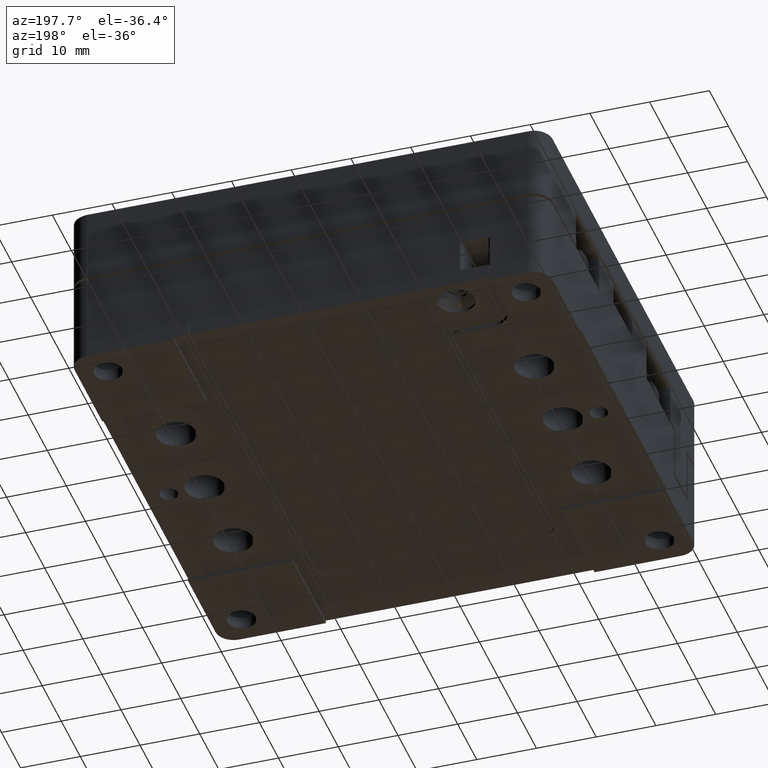
[diagram: clean part render]
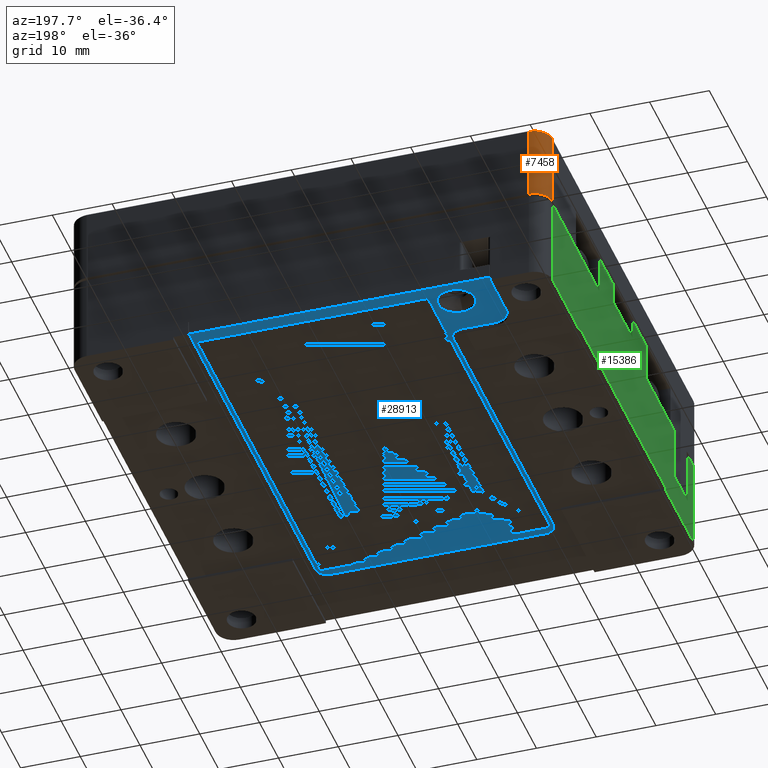
[diagram: same view with three faces highlighted in distinct colors, each labeled with its STEP entity id]
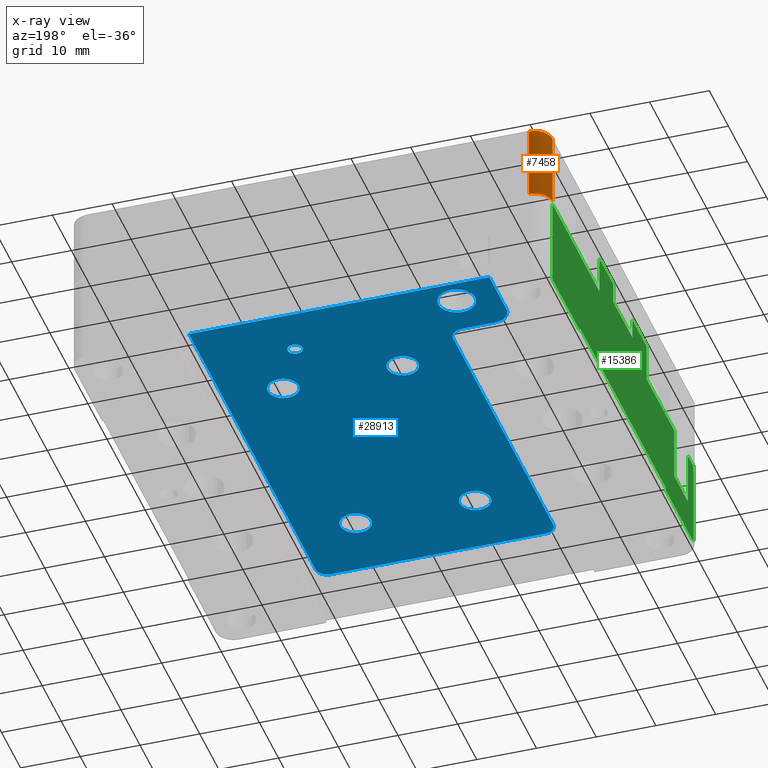
[diagram: x-ray of the same camera — body ghosted, the three highlighted faces saturated]
A machine part, auxiliary view with three faces highlighted in distinct colors.
The next image is the same camera in x-ray (body ghosted, the three faces saturated) — at least one of them is partly hidden behind the body in this view.
Their STEP definitions:

[orange] entity #7458 — the highlighted cylindrical surface (edge-blend (fillet) strip) has radius 3 mm, axis along (0, 0, -1).
#703 = CARTESIAN_POINT ( 'NONE',  ( -37.00000039854529632, 40.00000000003245759, 12.90000000003442082 ) ) ;
#1921 = EDGE_CURVE ( 'NONE', #2119, #15220, #26396, .T. ) ;
#2119 = VERTEX_POINT ( 'NONE', #7171 ) ;
#4132 = FACE_OUTER_BOUND ( 'NONE', #26134, .T. ) ;
#4414 = ORIENTED_EDGE ( 'NONE', *, *, #8469, .F. ) ;
#4505 = ORIENTED_EDGE ( 'NONE', *, *, #18843, .T. ) ;
#4557 = CARTESIAN_POINT ( 'NONE',  ( -37.00000000000000000, 37.00000000000000000, 30.44679999999999964 ) ) ;
#4612 = CARTESIAN_POINT ( 'NONE',  ( -37.00000079719974622, 40.00000000000000000, 30.44679999999999964 ) ) ;
#4656 = CIRCLE ( 'NONE', #5135, 3.000000000000002665 ) ;
#5135 = AXIS2_PLACEMENT_3D ( 'NONE', #20172, #9289, #15753 ) ;
#5554 = AXIS2_PLACEMENT_3D ( 'NONE', #4557, #19979, #10880 ) ;
#7171 = CARTESIAN_POINT ( 'NONE',  ( -40.00000000003250022, 37.00000021724499533, 12.90000000003442082 ) ) ;
#7458 = ADVANCED_FACE ( 'NONE', ( #4132 ), #17629, .T. ) ;
#8469 = EDGE_CURVE ( 'NONE', #20900, #14321, #4656, .T. ) ;
#8570 = AXIS2_PLACEMENT_3D ( 'NONE', #17464, #21428, #10271 ) ;
#9289 = DIRECTION ( 'NONE',  ( 0.000000000000000000, 0.000000000000000000, -1.000000000000000000 ) ) ;
#10271 = DIRECTION ( 'NONE',  ( -1.000000000000000000, 0.000000000000000000, 0.000000000000000000 ) ) ;
#10880 = DIRECTION ( 'NONE',  ( -1.000000000000000000, 0.000000000000000000, 0.000000000000000000 ) ) ;
#13904 = EDGE_CURVE ( 'NONE', #20900, #2119, #23042, .T. ) ;
#14321 = VERTEX_POINT ( 'NONE', #20499 ) ;
#15220 = VERTEX_POINT ( 'NONE', #703 ) ;
#15753 = DIRECTION ( 'NONE',  ( -1.000000000000000000, 0.000000000000000000, 0.000000000000000000 ) ) ;
#15763 = DIRECTION ( 'NONE',  ( 0.000000000000000000, 0.000000000000000000, -1.000000000000000000 ) ) ;
#15996 = DIRECTION ( 'NONE',  ( 0.000000000000000000, 0.000000000000000000, 1.000000000000000000 ) ) ;
#17464 = CARTESIAN_POINT ( 'NONE',  ( -37.00000000000000000, 37.00000000000000000, 12.90000000006693881 ) ) ;
#17629 = CYLINDRICAL_SURFACE ( 'NONE', #5554, 3.000000000000002665 ) ;
#18698 = VECTOR ( 'NONE', #15763, 1000.000000000000000 ) ;
#18843 = EDGE_CURVE ( 'NONE', #15220, #14321, #22375, .T. ) ;
#19102 = CARTESIAN_POINT ( 'NONE',  ( -40.00000000000000000, 37.00000000000000000, 0.5000000000000000000 ) ) ;
#19979 = DIRECTION ( 'NONE',  ( 0.000000000000000000, 0.000000000000000000, -1.000000000000000000 ) ) ;
#20172 = CARTESIAN_POINT ( 'NONE',  ( -37.00000000000000000, 37.00000000000000000, 0.5000000000000000000 ) ) ;
#20499 = CARTESIAN_POINT ( 'NONE',  ( -37.00000039859985179, 40.00000000000000000, 0.5000000000000000000 ) ) ;
#20639 = ORIENTED_EDGE ( 'NONE', *, *, #13904, .T. ) ;
#20818 = CARTESIAN_POINT ( 'NONE',  ( -40.00000000000000000, 37.00000000000000000, 0.000000000000000000 ) ) ;
#20900 = VERTEX_POINT ( 'NONE', #19102 ) ;
#21428 = DIRECTION ( 'NONE',  ( 0.000000000000000000, 0.000000000000000000, -1.000000000000000000 ) ) ;
#21612 = VECTOR ( 'NONE', #15996, 1000.000000000000000 ) ;
#22375 = LINE ( 'NONE', #4612, #18698 ) ;
#23042 = LINE ( 'NONE', #20818, #21612 ) ;
#26134 = EDGE_LOOP ( 'NONE', ( #20639, #28720, #4505, #4414 ) ) ;
#26396 = CIRCLE ( 'NONE', #8570, 3.000000000000002665 ) ;
#28720 = ORIENTED_EDGE ( 'NONE', *, *, #1921, .T. ) ;

[blue] entity #28913 — the highlighted planar face has unit normal (0, 0, -1).
#55 = DIRECTION ( 'NONE',  ( -1.000000000000000000, 0.000000000000000000, 0.000000000000000000 ) ) ;
#56 = EDGE_CURVE ( 'NONE', #26783, #28721, #6356, .T. ) ;
#91 = FACE_BOUND ( 'NONE', #3245, .T. ) ;
#277 = EDGE_CURVE ( 'NONE', #2964, #16203, #18578, .T. ) ;
#541 = CARTESIAN_POINT ( 'NONE',  ( -30.39999999999999858, 0.000000000000000000, -14.50000000000000000 ) ) ;
#542 = EDGE_CURVE ( 'NONE', #23485, #21714, #14146, .T. ) ;
#576 = DIRECTION ( 'NONE',  ( 0.000000000000000000, 0.000000000000000000, 1.000000000000000000 ) ) ;
#718 = AXIS2_PLACEMENT_3D ( 'NONE', #8488, #15663, #21831 ) ;
#895 = AXIS2_PLACEMENT_3D ( 'NONE', #3913, #14929, #28176 ) ;
#909 = EDGE_CURVE ( 'NONE', #24983, #16918, #26061, .T. ) ;
#927 = CARTESIAN_POINT ( 'NONE',  ( -26.59999999999999787, 35.50000000000000000, -14.50000000000000000 ) ) ;
#1005 = DIRECTION ( 'NONE',  ( 0.000000000000000000, 0.000000000000000000, 1.000000000000000000 ) ) ;
#1765 = EDGE_LOOP ( 'NONE', ( #4300, #11971 ) ) ;
#2163 = DIRECTION ( 'NONE',  ( 0.000000000000000000, 0.000000000000000000, -1.000000000000000000 ) ) ;
#2263 = CARTESIAN_POINT ( 'NONE',  ( 10.00000000000000000, 21.50000000000000000, -14.50000000000000000 ) ) ;
#2388 = DIRECTION ( 'NONE',  ( -1.000000000000000000, 0.000000000000000000, 0.000000000000000000 ) ) ;
#2441 = CARTESIAN_POINT ( 'NONE',  ( -20.40000000000000213, 35.50000000000000000, -14.50000000000000000 ) ) ;
#2586 = VERTEX_POINT ( 'NONE', #20880 ) ;
#2853 = DIRECTION ( 'NONE',  ( -1.000000000000000000, 0.000000000000000000, 0.000000000000000000 ) ) ;
#2964 = VERTEX_POINT ( 'NONE', #7070 ) ;
#3245 = EDGE_LOOP ( 'NONE', ( #20652, #24801 ) ) ;
#3303 = AXIS2_PLACEMENT_3D ( 'NONE', #10264, #25538, #5417 ) ;
#3337 = CARTESIAN_POINT ( 'NONE',  ( 5.000000000000000000, 31.00000000000000000, -14.50000000000000000 ) ) ;
#3438 = LINE ( 'NONE', #18861, #22732 ) ;
#3913 = CARTESIAN_POINT ( 'NONE',  ( 5.000000000000000000, 31.00000000000000000, -14.50000000000000000 ) ) ;
#4118 = DIRECTION ( 'NONE',  ( 0.000000000000000000, 0.000000000000000000, -1.000000000000000000 ) ) ;
#4300 = ORIENTED_EDGE ( 'NONE', *, *, #21426, .T. ) ;
#4319 = EDGE_CURVE ( 'NONE', #10794, #25754, #15346, .T. ) ;
#4353 = VERTEX_POINT ( 'NONE', #13281 ) ;
#4425 = EDGE_CURVE ( 'NONE', #25005, #24983, #8727, .T. ) ;
#4719 = AXIS2_PLACEMENT_3D ( 'NONE', #21331, #12087, #2853 ) ;
#4742 = DIRECTION ( 'NONE',  ( 0.000000000000000000, 0.000000000000000000, 1.000000000000000000 ) ) ;
#4748 = DIRECTION ( 'NONE',  ( 0.000000000000000000, 0.000000000000000000, 1.000000000000000000 ) ) ;
#4948 = AXIS2_PLACEMENT_3D ( 'NONE', #9247, #7057, #15440 ) ;
#5016 = CARTESIAN_POINT ( 'NONE',  ( -23.50000000000000000, 35.50000000000000000, -14.50000000000000000 ) ) ;
#5311 = DIRECTION ( 'NONE',  ( 0.000000000000000000, 1.000000000000000000, 0.000000000000000000 ) ) ;
#5417 = DIRECTION ( 'NONE',  ( -1.000000000000000000, 0.000000000000000000, 0.000000000000000000 ) ) ;
#5586 = DIRECTION ( 'NONE',  ( -1.000000000000000000, 0.000000000000000000, 0.000000000000000000 ) ) ;
#5640 = VERTEX_POINT ( 'NONE', #12519 ) ;
#5840 = ORIENTED_EDGE ( 'NONE', *, *, #21678, .T. ) ;
#5863 = EDGE_CURVE ( 'NONE', #20259, #18412, #19634, .T. ) ;
#5997 = CARTESIAN_POINT ( 'NONE',  ( 10.00000000000000000, 21.50000000000000000, -14.50000000000000000 ) ) ;
#6356 = CIRCLE ( 'NONE', #20424, 2.899999999999999911 ) ;
#6445 = AXIS2_PLACEMENT_3D ( 'NONE', #2263, #20321, #55 ) ;
#6597 = CIRCLE ( 'NONE', #26774, 2.600000000000000089 ) ;
#6716 = FACE_BOUND ( 'NONE', #13694, .T. ) ;
#6948 = CARTESIAN_POINT ( 'NONE',  ( -22.00000000000000000, 26.00000000000000000, -14.50000000000000000 ) ) ;
#6976 = AXIS2_PLACEMENT_3D ( 'NONE', #13546, #13109, #2388 ) ;
#7022 = DIRECTION ( 'NONE',  ( 0.000000000000000000, 1.000000000000000000, 0.000000000000000000 ) ) ;
#7057 = DIRECTION ( 'NONE',  ( 0.000000000000000000, 0.000000000000000000, -1.000000000000000000 ) ) ;
#7070 = CARTESIAN_POINT ( 'NONE',  ( 6.250000000000000000, 31.00000000000000000, -14.50000000000000000 ) ) ;
#7584 = LINE ( 'NONE', #16535, #12439 ) ;
#7657 = VERTEX_POINT ( 'NONE', #27183 ) ;
#8199 = CARTESIAN_POINT ( 'NONE',  ( 18.00000000000000000, -28.40000000000000213, -14.50000000000000000 ) ) ;
#8488 = CARTESIAN_POINT ( 'NONE',  ( 0.000000000000000000, 0.000000000000000000, -14.50000000000000000 ) ) ;
#8601 = DIRECTION ( 'NONE',  ( 0.000000000000000000, 0.000000000000000000, 1.000000000000000000 ) ) ;
#8626 = FACE_BOUND ( 'NONE', #22126, .T. ) ;
#8727 = LINE ( 'NONE', #28224, #9225 ) ;
#8780 = ORIENTED_EDGE ( 'NONE', *, *, #23926, .T. ) ;
#8884 = EDGE_CURVE ( 'NONE', #4353, #7657, #27693, .T. ) ;
#8974 = VECTOR ( 'NONE', #7022, 1000.000000000000000 ) ;
#9225 = VECTOR ( 'NONE', #5586, 1000.000000000000000 ) ;
#9247 = CARTESIAN_POINT ( 'NONE',  ( -18.00000000000000000, -26.50000000000000000, -14.50000000000000000 ) ) ;
#9540 = DIRECTION ( 'NONE',  ( -1.000000000000000000, 0.000000000000000000, 0.000000000000000000 ) ) ;
#9575 = CARTESIAN_POINT ( 'NONE',  ( 0.000000000000000000, 28.10000000000000142, -14.50000000000000000 ) ) ;
#9714 = LINE ( 'NONE', #25440, #19228 ) ;
#9955 = DIRECTION ( 'NONE',  ( -1.000000000000000000, 0.000000000000000000, 0.000000000000000000 ) ) ;
#10163 = EDGE_CURVE ( 'NONE', #16918, #23485, #9714, .T. ) ;
#10264 = CARTESIAN_POINT ( 'NONE',  ( 10.00000000000000000, -16.50000000000000000, -14.50000000000000000 ) ) ;
#10497 = EDGE_CURVE ( 'NONE', #11941, #18628, #15955, .T. ) ;
#10640 = CARTESIAN_POINT ( 'NONE',  ( -10.00000000000000000, -16.50000000000000000, -14.50000000000000000 ) ) ;
#10677 = FACE_BOUND ( 'NONE', #21786, .T. ) ;
#10794 = VERTEX_POINT ( 'NONE', #24793 ) ;
#10861 = CIRCLE ( 'NONE', #22113, 1.899999999999999023 ) ;
#10963 = ORIENTED_EDGE ( 'NONE', *, *, #56, .T. ) ;
#10998 = CARTESIAN_POINT ( 'NONE',  ( 18.00000000000000000, -26.50000000000000000, -14.50000000000000000 ) ) ;
#11006 = EDGE_CURVE ( 'NONE', #16203, #2964, #16442, .T. ) ;
#11032 = ORIENTED_EDGE ( 'NONE', *, *, #8884, .T. ) ;
#11095 = EDGE_CURVE ( 'NONE', #21714, #26783, #16183, .T. ) ;
#11673 = CARTESIAN_POINT ( 'NONE',  ( -12.59999999999999964, -16.50000000000000000, -14.50000000000000000 ) ) ;
#11784 = ORIENTED_EDGE ( 'NONE', *, *, #909, .T. ) ;
#11927 = CIRCLE ( 'NONE', #28386, 3.099999999999998757 ) ;
#11941 = VERTEX_POINT ( 'NONE', #17899 ) ;
#11971 = ORIENTED_EDGE ( 'NONE', *, *, #4319, .T. ) ;
#11988 = EDGE_CURVE ( 'NONE', #28721, #5640, #22588, .T. ) ;
#11994 = AXIS2_PLACEMENT_3D ( 'NONE', #10640, #8601, #20430 ) ;
#12087 = DIRECTION ( 'NONE',  ( 0.000000000000000000, 0.000000000000000000, 1.000000000000000000 ) ) ;
#12439 = VECTOR ( 'NONE', #23290, 1000.000000000000000 ) ;
#12519 = CARTESIAN_POINT ( 'NONE',  ( -30.39999999999999858, 40.00000000000000000, -14.50000000000000000 ) ) ;
#13071 = DIRECTION ( 'NONE',  ( -1.000000000000000000, 0.000000000000000000, 0.000000000000000000 ) ) ;
#13109 = DIRECTION ( 'NONE',  ( 0.000000000000000000, 0.000000000000000000, 1.000000000000000000 ) ) ;
#13281 = CARTESIAN_POINT ( 'NONE',  ( -7.400000000000000355, 21.50000000000000000, -14.50000000000000000 ) ) ;
#13284 = ORIENTED_EDGE ( 'NONE', *, *, #10163, .T. ) ;
#13382 = CARTESIAN_POINT ( 'NONE',  ( -10.00000000000000000, -16.50000000000000000, -14.50000000000000000 ) ) ;
#13546 = CARTESIAN_POINT ( 'NONE',  ( -23.50000000000000000, 35.50000000000000000, -14.50000000000000000 ) ) ;
#13694 = EDGE_LOOP ( 'NONE', ( #17626, #5840 ) ) ;
#13902 = DIRECTION ( 'NONE',  ( 0.000000000000000000, -1.000000000000000000, 0.000000000000000000 ) ) ;
#14001 = ORIENTED_EDGE ( 'NONE', *, *, #5863, .T. ) ;
#14146 = CIRCLE ( 'NONE', #16488, 2.100000000000000977 ) ;
#14519 = EDGE_CURVE ( 'NONE', #5640, #22676, #7584, .T. ) ;
#14629 = EDGE_CURVE ( 'NONE', #19760, #2586, #23709, .T. ) ;
#14900 = ORIENTED_EDGE ( 'NONE', *, *, #19648, .T. ) ;
#14929 = DIRECTION ( 'NONE',  ( 0.000000000000000000, 0.000000000000000000, 1.000000000000000000 ) ) ;
#15023 = AXIS2_PLACEMENT_3D ( 'NONE', #25408, #576, #9540 ) ;
#15202 = CARTESIAN_POINT ( 'NONE',  ( 12.59999999999999964, -16.50000000000000000, -14.50000000000000000 ) ) ;
#15235 = DIRECTION ( 'NONE',  ( 0.000000000000000000, 0.000000000000000000, 1.000000000000000000 ) ) ;
#15304 = CARTESIAN_POINT ( 'NONE',  ( -27.50000000000000000, 28.10000000000000142, -14.50000000000000000 ) ) ;
#15346 = CIRCLE ( 'NONE', #6445, 2.600000000000000089 ) ;
#15383 = DIRECTION ( 'NONE',  ( -1.000000000000000000, 0.000000000000000000, 0.000000000000000000 ) ) ;
#15440 = DIRECTION ( 'NONE',  ( -1.000000000000000000, 0.000000000000000000, 0.000000000000000000 ) ) ;
#15465 = CARTESIAN_POINT ( 'NONE',  ( 19.90000000000000213, 40.00000000000000000, -14.50000000000000000 ) ) ;
#15612 = CARTESIAN_POINT ( 'NONE',  ( 3.750000000000000000, 31.00000000000000000, -14.50000000000000000 ) ) ;
#15663 = DIRECTION ( 'NONE',  ( 0.000000000000000000, 0.000000000000000000, -1.000000000000000000 ) ) ;
#15807 = PLANE ( 'NONE',  #718 ) ;
#15955 = CIRCLE ( 'NONE', #3303, 2.600000000000000089 ) ;
#16183 = LINE ( 'NONE', #9575, #23426 ) ;
#16203 = VERTEX_POINT ( 'NONE', #15612 ) ;
#16414 = CIRCLE ( 'NONE', #24850, 2.600000000000000089 ) ;
#16442 = CIRCLE ( 'NONE', #895, 1.250000000000000222 ) ;
#16488 = AXIS2_PLACEMENT_3D ( 'NONE', #6948, #4748, #22647 ) ;
#16535 = CARTESIAN_POINT ( 'NONE',  ( 0.000000000000000000, 40.00000000000000000, -14.50000000000000000 ) ) ;
#16918 = VERTEX_POINT ( 'NONE', #22717 ) ;
#17009 = ORIENTED_EDGE ( 'NONE', *, *, #24175, .T. ) ;
#17155 = AXIS2_PLACEMENT_3D ( 'NONE', #3337, #28860, #18894 ) ;
#17441 = FACE_BOUND ( 'NONE', #1765, .T. ) ;
#17626 = ORIENTED_EDGE ( 'NONE', *, *, #10497, .T. ) ;
#17899 = CARTESIAN_POINT ( 'NONE',  ( 7.400000000000000355, -16.50000000000000000, -14.50000000000000000 ) ) ;
#17945 = DIRECTION ( 'NONE',  ( -1.000000000000000000, 0.000000000000000000, 0.000000000000000000 ) ) ;
#18412 = VERTEX_POINT ( 'NONE', #2441 ) ;
#18578 = CIRCLE ( 'NONE', #17155, 1.250000000000000222 ) ;
#18628 = VERTEX_POINT ( 'NONE', #15202 ) ;
#18731 = EDGE_LOOP ( 'NONE', ( #28855, #22437 ) ) ;
#18833 = AXIS2_PLACEMENT_3D ( 'NONE', #13382, #19864, #17945 ) ;
#18861 = CARTESIAN_POINT ( 'NONE',  ( 19.90000000000000213, 0.000000000000000000, -14.50000000000000000 ) ) ;
#18894 = DIRECTION ( 'NONE',  ( 1.000000000000000000, 0.000000000000000000, 0.000000000000000000 ) ) ;
#19228 = VECTOR ( 'NONE', #5311, 1000.000000000000000 ) ;
#19563 = CARTESIAN_POINT ( 'NONE',  ( 19.90000000000000213, -26.50000000000000000, -14.50000000000000000 ) ) ;
#19634 = CIRCLE ( 'NONE', #6976, 3.099999999999998757 ) ;
#19645 = FACE_OUTER_BOUND ( 'NONE', #22228, .T. ) ;
#19648 = EDGE_CURVE ( 'NONE', #7657, #4353, #16414, .T. ) ;
#19760 = VERTEX_POINT ( 'NONE', #11673 ) ;
#19864 = DIRECTION ( 'NONE',  ( 0.000000000000000000, 0.000000000000000000, 1.000000000000000000 ) ) ;
#20259 = VERTEX_POINT ( 'NONE', #927 ) ;
#20321 = DIRECTION ( 'NONE',  ( 0.000000000000000000, 0.000000000000000000, 1.000000000000000000 ) ) ;
#20424 = AXIS2_PLACEMENT_3D ( 'NONE', #22276, #2163, #22435 ) ;
#20430 = DIRECTION ( 'NONE',  ( -1.000000000000000000, 0.000000000000000000, 0.000000000000000000 ) ) ;
#20500 = ORIENTED_EDGE ( 'NONE', *, *, #21076, .T. ) ;
#20634 = EDGE_CURVE ( 'NONE', #2586, #19760, #28222, .T. ) ;
#20652 = ORIENTED_EDGE ( 'NONE', *, *, #277, .T. ) ;
#20880 = CARTESIAN_POINT ( 'NONE',  ( -7.400000000000000355, -16.50000000000000000, -14.50000000000000000 ) ) ;
#21076 = EDGE_CURVE ( 'NONE', #27898, #25005, #10861, .T. ) ;
#21331 = CARTESIAN_POINT ( 'NONE',  ( 10.00000000000000000, -16.50000000000000000, -14.50000000000000000 ) ) ;
#21426 = EDGE_CURVE ( 'NONE', #25754, #10794, #6597, .T. ) ;
#21557 = CARTESIAN_POINT ( 'NONE',  ( -30.39999999999999858, 31.00000000000000000, -14.50000000000000000 ) ) ;
#21678 = EDGE_CURVE ( 'NONE', #18628, #11941, #28669, .T. ) ;
#21714 = VERTEX_POINT ( 'NONE', #23412 ) ;
#21786 = EDGE_LOOP ( 'NONE', ( #14900, #11032 ) ) ;
#21831 = DIRECTION ( 'NONE',  ( 0.000000000000000000, -1.000000000000000000, 0.000000000000000000 ) ) ;
#22050 = ORIENTED_EDGE ( 'NONE', *, *, #11095, .T. ) ;
#22113 = AXIS2_PLACEMENT_3D ( 'NONE', #10998, #4118, #13071 ) ;
#22126 = EDGE_LOOP ( 'NONE', ( #14001, #17009 ) ) ;
#22228 = EDGE_LOOP ( 'NONE', ( #27799, #25019, #8780, #20500, #25675, #11784, #13284, #27892, #22050, #10963 ) ) ;
#22276 = CARTESIAN_POINT ( 'NONE',  ( -27.50000000000000000, 31.00000000000000000, -14.50000000000000000 ) ) ;
#22435 = DIRECTION ( 'NONE',  ( -1.000000000000000000, 0.000000000000000000, 0.000000000000000000 ) ) ;
#22437 = ORIENTED_EDGE ( 'NONE', *, *, #20634, .T. ) ;
#22588 = LINE ( 'NONE', #541, #8974 ) ;
#22647 = DIRECTION ( 'NONE',  ( -1.000000000000000000, 0.000000000000000000, 0.000000000000000000 ) ) ;
#22676 = VERTEX_POINT ( 'NONE', #15465 ) ;
#22717 = CARTESIAN_POINT ( 'NONE',  ( -19.90000000000000213, -26.50000000000000000, -14.50000000000000000 ) ) ;
#22732 = VECTOR ( 'NONE', #13902, 1000.000000000000000 ) ;
#22794 = DIRECTION ( 'NONE',  ( -1.000000000000000000, 0.000000000000000000, 0.000000000000000000 ) ) ;
#23290 = DIRECTION ( 'NONE',  ( 1.000000000000000000, 0.000000000000000000, 0.000000000000000000 ) ) ;
#23412 = CARTESIAN_POINT ( 'NONE',  ( -22.00000000000000000, 28.10000000000000142, -14.50000000000000000 ) ) ;
#23426 = VECTOR ( 'NONE', #22794, 1000.000000000000000 ) ;
#23485 = VERTEX_POINT ( 'NONE', #23489 ) ;
#23489 = CARTESIAN_POINT ( 'NONE',  ( -19.90000000000000213, 26.00000000000000000, -14.50000000000000000 ) ) ;
#23709 = CIRCLE ( 'NONE', #11994, 2.600000000000000089 ) ;
#23926 = EDGE_CURVE ( 'NONE', #22676, #27898, #3438, .T. ) ;
#24175 = EDGE_CURVE ( 'NONE', #18412, #20259, #11927, .T. ) ;
#24793 = CARTESIAN_POINT ( 'NONE',  ( 12.59999999999999964, 21.50000000000000000, -14.50000000000000000 ) ) ;
#24801 = ORIENTED_EDGE ( 'NONE', *, *, #11006, .T. ) ;
#24850 = AXIS2_PLACEMENT_3D ( 'NONE', #28772, #15235, #15383 ) ;
#24983 = VERTEX_POINT ( 'NONE', #28349 ) ;
#25005 = VERTEX_POINT ( 'NONE', #8199 ) ;
#25019 = ORIENTED_EDGE ( 'NONE', *, *, #14519, .T. ) ;
#25408 = CARTESIAN_POINT ( 'NONE',  ( -10.00000000000000000, 21.50000000000000000, -14.50000000000000000 ) ) ;
#25440 = CARTESIAN_POINT ( 'NONE',  ( -19.90000000000000213, 0.000000000000000000, -14.50000000000000000 ) ) ;
#25538 = DIRECTION ( 'NONE',  ( 0.000000000000000000, 0.000000000000000000, 1.000000000000000000 ) ) ;
#25675 = ORIENTED_EDGE ( 'NONE', *, *, #4425, .T. ) ;
#25754 = VERTEX_POINT ( 'NONE', #26207 ) ;
#26061 = CIRCLE ( 'NONE', #4948, 1.899999999999999023 ) ;
#26207 = CARTESIAN_POINT ( 'NONE',  ( 7.400000000000000355, 21.50000000000000000, -14.50000000000000000 ) ) ;
#26774 = AXIS2_PLACEMENT_3D ( 'NONE', #5997, #1005, #9955 ) ;
#26783 = VERTEX_POINT ( 'NONE', #15304 ) ;
#26853 = FACE_BOUND ( 'NONE', #18731, .T. ) ;
#27183 = CARTESIAN_POINT ( 'NONE',  ( -12.59999999999999964, 21.50000000000000000, -14.50000000000000000 ) ) ;
#27363 = DIRECTION ( 'NONE',  ( -1.000000000000000000, 0.000000000000000000, 0.000000000000000000 ) ) ;
#27693 = CIRCLE ( 'NONE', #15023, 2.600000000000000089 ) ;
#27799 = ORIENTED_EDGE ( 'NONE', *, *, #11988, .T. ) ;
#27892 = ORIENTED_EDGE ( 'NONE', *, *, #542, .T. ) ;
#27898 = VERTEX_POINT ( 'NONE', #19563 ) ;
#28176 = DIRECTION ( 'NONE',  ( 1.000000000000000000, 0.000000000000000000, 0.000000000000000000 ) ) ;
#28222 = CIRCLE ( 'NONE', #18833, 2.600000000000000089 ) ;
#28224 = CARTESIAN_POINT ( 'NONE',  ( 0.000000000000000000, -28.40000000000000213, -14.50000000000000000 ) ) ;
#28349 = CARTESIAN_POINT ( 'NONE',  ( -18.00000000000000000, -28.40000000000000213, -14.50000000000000000 ) ) ;
#28386 = AXIS2_PLACEMENT_3D ( 'NONE', #5016, #4742, #27363 ) ;
#28669 = CIRCLE ( 'NONE', #4719, 2.600000000000000089 ) ;
#28721 = VERTEX_POINT ( 'NONE', #21557 ) ;
#28772 = CARTESIAN_POINT ( 'NONE',  ( -10.00000000000000000, 21.50000000000000000, -14.50000000000000000 ) ) ;
#28855 = ORIENTED_EDGE ( 'NONE', *, *, #14629, .T. ) ;
#28860 = DIRECTION ( 'NONE',  ( 0.000000000000000000, 0.000000000000000000, 1.000000000000000000 ) ) ;
#28913 = ADVANCED_FACE ( 'NONE', ( #19645, #8626, #91, #10677, #26853, #17441, #6716 ), #15807, .T. ) ;

[green] entity #15386 — the highlighted planar face has unit normal (1, 0, 0).
#146 = VERTEX_POINT ( 'NONE', #22861 ) ;
#202 = VERTEX_POINT ( 'NONE', #27297 ) ;
#350 = ORIENTED_EDGE ( 'NONE', *, *, #8103, .F. ) ;
#375 = VERTEX_POINT ( 'NONE', #19742 ) ;
#691 = CARTESIAN_POINT ( 'NONE',  ( -40.00000000000000000, 0.000000000000000000, -15.00000000000000000 ) ) ;
#948 = DIRECTION ( 'NONE',  ( 0.000000000000000000, 0.000000000000000000, 1.000000000000000000 ) ) ;
#1036 = VECTOR ( 'NONE', #18498, 1000.000000000000000 ) ;
#1074 = ORIENTED_EDGE ( 'NONE', *, *, #4879, .F. ) ;
#1139 = ORIENTED_EDGE ( 'NONE', *, *, #5489, .F. ) ;
#1279 = DIRECTION ( 'NONE',  ( 0.000000000000000000, 1.000000000000000000, 0.000000000000000000 ) ) ;
#1890 = EDGE_CURVE ( 'NONE', #6077, #16960, #16590, .T. ) ;
#2193 = DIRECTION ( 'NONE',  ( 0.000000000000000000, 0.000000000000000000, 1.000000000000000000 ) ) ;
#2485 = LINE ( 'NONE', #15571, #27754 ) ;
#2569 = EDGE_CURVE ( 'NONE', #20799, #2663, #5031, .T. ) ;
#2583 = LINE ( 'NONE', #25055, #14804 ) ;
#2663 = VERTEX_POINT ( 'NONE', #5762 ) ;
#3168 = CARTESIAN_POINT ( 'NONE',  ( -40.00000000000000000, 0.000000000000000000, 6.500000000000000000 ) ) ;
#3974 = DIRECTION ( 'NONE',  ( 0.000000000000000000, 1.000000000000000000, 0.000000000000000000 ) ) ;
#4006 = CARTESIAN_POINT ( 'NONE',  ( -40.00000000000000000, -27.00000000000000000, -9.000000000000000000 ) ) ;
#4373 = FACE_OUTER_BOUND ( 'NONE', #14249, .T. ) ;
#4448 = ORIENTED_EDGE ( 'NONE', *, *, #1890, .F. ) ;
#4583 = CARTESIAN_POINT ( 'NONE',  ( -40.00000000000000000, 12.40000000000000036, 0.000000000000000000 ) ) ;
#4754 = ORIENTED_EDGE ( 'NONE', *, *, #2569, .F. ) ;
#4879 = EDGE_CURVE ( 'NONE', #23811, #13821, #5391, .T. ) ;
#5031 = LINE ( 'NONE', #16052, #17814 ) ;
#5086 = VECTOR ( 'NONE', #3974, 1000.000000000000000 ) ;
#5321 = EDGE_CURVE ( 'NONE', #375, #202, #21084, .T. ) ;
#5391 = LINE ( 'NONE', #691, #21918 ) ;
#5409 = EDGE_CURVE ( 'NONE', #16288, #10470, #23579, .T. ) ;
#5489 = EDGE_CURVE ( 'NONE', #12293, #18043, #26064, .T. ) ;
#5516 = DIRECTION ( 'NONE',  ( 0.000000000000000000, -1.000000000000000000, 0.000000000000000000 ) ) ;
#5633 = VERTEX_POINT ( 'NONE', #4006 ) ;
#5762 = CARTESIAN_POINT ( 'NONE',  ( -40.00000000000000000, -22.50000000000000000, -15.00000000000000000 ) ) ;
#5899 = VERTEX_POINT ( 'NONE', #23487 ) ;
#6077 = VERTEX_POINT ( 'NONE', #21840 ) ;
#6107 = EDGE_CURVE ( 'NONE', #146, #5899, #12882, .T. ) ;
#6601 = CARTESIAN_POINT ( 'NONE',  ( -40.00000000000000000, 37.00000000000000000, 0.000000000000000000 ) ) ;
#6660 = ORIENTED_EDGE ( 'NONE', *, *, #11776, .T. ) ;
#7231 = ORIENTED_EDGE ( 'NONE', *, *, #20542, .F. ) ;
#7313 = EDGE_CURVE ( 'NONE', #11266, #5633, #14574, .T. ) ;
#7343 = CARTESIAN_POINT ( 'NONE',  ( -40.00000000000000000, 0.000000000000000000, 0.000000000000000000 ) ) ;
#7414 = LINE ( 'NONE', #16370, #22493 ) ;
#7417 = CARTESIAN_POINT ( 'NONE',  ( -40.00000000000000000, -5.000000000000000000, 0.000000000000000000 ) ) ;
#7650 = ORIENTED_EDGE ( 'NONE', *, *, #7313, .T. ) ;
#7948 = CARTESIAN_POINT ( 'NONE',  ( -40.00000000000000000, -34.00000000000000000, -9.000000000000000000 ) ) ;
#8071 = CARTESIAN_POINT ( 'NONE',  ( -40.00000000000000000, -22.50000000000000000, -15.00000000000000000 ) ) ;
#8103 = EDGE_CURVE ( 'NONE', #202, #6077, #23422, .T. ) ;
#8159 = EDGE_CURVE ( 'NONE', #11266, #19179, #7414, .T. ) ;
#8223 = VERTEX_POINT ( 'NONE', #28729 ) ;
#8403 = VECTOR ( 'NONE', #22587, 1000.000000000000000 ) ;
#8411 = CARTESIAN_POINT ( 'NONE',  ( -40.00000000000000000, -34.00000000000000000, 0.000000000000000000 ) ) ;
#9234 = EDGE_CURVE ( 'NONE', #13821, #25641, #26731, .T. ) ;
#9507 = LINE ( 'NONE', #20672, #18334 ) ;
#9729 = DIRECTION ( 'NONE',  ( 0.000000000000000000, 0.000000000000000000, -1.000000000000000000 ) ) ;
#10089 = LINE ( 'NONE', #18917, #24908 ) ;
#10188 = DIRECTION ( 'NONE',  ( 0.000000000000000000, 0.000000000000000000, -1.000000000000000000 ) ) ;
#10362 = CARTESIAN_POINT ( 'NONE',  ( -40.00000000000000000, 0.000000000000000000, 3.000000000000000000 ) ) ;
#10470 = VERTEX_POINT ( 'NONE', #16585 ) ;
#11266 = VERTEX_POINT ( 'NONE', #12214 ) ;
#11354 = DIRECTION ( 'NONE',  ( 0.000000000000000000, 1.000000000000000000, 0.000000000000000000 ) ) ;
#11722 = ORIENTED_EDGE ( 'NONE', *, *, #17495, .T. ) ;
#11767 = CARTESIAN_POINT ( 'NONE',  ( -40.00000000000000000, 12.40000000000000036, 6.500000000000000000 ) ) ;
#11776 = EDGE_CURVE ( 'NONE', #146, #2663, #21580, .T. ) ;
#11949 = EDGE_CURVE ( 'NONE', #19179, #8223, #9507, .T. ) ;
#12098 = VECTOR ( 'NONE', #19761, 1000.000000000000000 ) ;
#12135 = VECTOR ( 'NONE', #13186, 1000.000000000000000 ) ;
#12214 = CARTESIAN_POINT ( 'NONE',  ( -40.00000000000000000, -34.00000000000000000, -9.000000000000000000 ) ) ;
#12293 = VERTEX_POINT ( 'NONE', #15227 ) ;
#12433 = ORIENTED_EDGE ( 'NONE', *, *, #25721, .F. ) ;
#12711 = ORIENTED_EDGE ( 'NONE', *, *, #26530, .F. ) ;
#12882 = LINE ( 'NONE', #15543, #12135 ) ;
#12912 = CARTESIAN_POINT ( 'NONE',  ( -40.00000000000000000, -37.00000000000000000, -15.00000000000000000 ) ) ;
#13075 = ORIENTED_EDGE ( 'NONE', *, *, #9234, .F. ) ;
#13102 = DIRECTION ( 'NONE',  ( 0.000000000000000000, 0.000000000000000000, 1.000000000000000000 ) ) ;
#13186 = DIRECTION ( 'NONE',  ( 0.000000000000000000, 1.000000000000000000, 0.000000000000000000 ) ) ;
#13187 = DIRECTION ( 'NONE',  ( 1.000000000000000000, 0.000000000000000000, 0.000000000000000000 ) ) ;
#13689 = ORIENTED_EDGE ( 'NONE', *, *, #20982, .T. ) ;
#13821 = VERTEX_POINT ( 'NONE', #27755 ) ;
#14086 = EDGE_CURVE ( 'NONE', #10470, #12293, #10089, .T. ) ;
#14172 = DIRECTION ( 'NONE',  ( 0.000000000000000000, 0.000000000000000000, 1.000000000000000000 ) ) ;
#14249 = EDGE_LOOP ( 'NONE', ( #12433, #1139, #16121, #16211, #7231, #20538, #13075, #1074, #11722, #22508, #6660, #4754, #12711, #20924, #15781, #7650, #13689, #4448, #350, #27724 ) ) ;
#14364 = EDGE_CURVE ( 'NONE', #25641, #25339, #2583, .T. ) ;
#14574 = LINE ( 'NONE', #7948, #5086 ) ;
#14613 = CARTESIAN_POINT ( 'NONE',  ( -40.00000000000000000, -12.40000000000000036, 0.000000000000000000 ) ) ;
#14749 = LINE ( 'NONE', #16945, #21931 ) ;
#14804 = VECTOR ( 'NONE', #24776, 1000.000000000000000 ) ;
#15227 = CARTESIAN_POINT ( 'NONE',  ( -40.00000000000000000, 5.000000000000000000, 3.000000000000000000 ) ) ;
#15386 = ADVANCED_FACE ( 'NONE', ( #4373 ), #26861, .F. ) ;
#15543 = CARTESIAN_POINT ( 'NONE',  ( -40.00000000000000000, 0.000000000000000000, -14.50000000000000000 ) ) ;
#15571 = CARTESIAN_POINT ( 'NONE',  ( -40.00000000000000000, -27.00000000000000000, -9.000000000000000000 ) ) ;
#15781 = ORIENTED_EDGE ( 'NONE', *, *, #8159, .F. ) ;
#16052 = CARTESIAN_POINT ( 'NONE',  ( -40.00000000000000000, 0.000000000000000000, -15.00000000000000000 ) ) ;
#16121 = ORIENTED_EDGE ( 'NONE', *, *, #14086, .F. ) ;
#16211 = ORIENTED_EDGE ( 'NONE', *, *, #5409, .F. ) ;
#16288 = VERTEX_POINT ( 'NONE', #11767 ) ;
#16370 = CARTESIAN_POINT ( 'NONE',  ( -40.00000000000000000, -34.00000000000000000, 0.000000000000000000 ) ) ;
#16585 = CARTESIAN_POINT ( 'NONE',  ( -40.00000000000000000, 5.000000000000000000, 6.500000000000000000 ) ) ;
#16590 = LINE ( 'NONE', #7343, #1036 ) ;
#16665 = DIRECTION ( 'NONE',  ( 0.000000000000000000, -1.000000000000000000, 0.000000000000000000 ) ) ;
#16711 = VECTOR ( 'NONE', #25329, 1000.000000000000000 ) ;
#16945 = CARTESIAN_POINT ( 'NONE',  ( -40.00000000000000000, 22.50000000000000000, -15.00000000000000000 ) ) ;
#16960 = VERTEX_POINT ( 'NONE', #19036 ) ;
#16978 = CARTESIAN_POINT ( 'NONE',  ( -40.00000000000000000, 12.40000000000000036, 0.000000000000000000 ) ) ;
#17495 = EDGE_CURVE ( 'NONE', #23811, #5899, #14749, .T. ) ;
#17807 = LINE ( 'NONE', #4583, #23973 ) ;
#17814 = VECTOR ( 'NONE', #11354, 1000.000000000000000 ) ;
#18015 = CARTESIAN_POINT ( 'NONE',  ( -40.00000000000000000, 0.000000000000000000, 0.000000000000000000 ) ) ;
#18043 = VERTEX_POINT ( 'NONE', #22448 ) ;
#18258 = VECTOR ( 'NONE', #10188, 1000.000000000000000 ) ;
#18323 = DIRECTION ( 'NONE',  ( 0.000000000000000000, -1.000000000000000000, 0.000000000000000000 ) ) ;
#18334 = VECTOR ( 'NONE', #18323, 1000.000000000000000 ) ;
#18498 = DIRECTION ( 'NONE',  ( 0.000000000000000000, -1.000000000000000000, 0.000000000000000000 ) ) ;
#18841 = LINE ( 'NONE', #25151, #23817 ) ;
#18917 = CARTESIAN_POINT ( 'NONE',  ( -40.00000000000000000, 5.000000000000000000, 0.000000000000000000 ) ) ;
#19036 = CARTESIAN_POINT ( 'NONE',  ( -40.00000000000000000, -27.00000000000000000, 0.000000000000000000 ) ) ;
#19057 = DIRECTION ( 'NONE',  ( 0.000000000000000000, 0.000000000000000000, -1.000000000000000000 ) ) ;
#19179 = VERTEX_POINT ( 'NONE', #8411 ) ;
#19298 = CARTESIAN_POINT ( 'NONE',  ( -40.00000000000000000, 22.50000000000000000, -15.00000000000000000 ) ) ;
#19742 = CARTESIAN_POINT ( 'NONE',  ( -40.00000000000000000, -5.000000000000000000, 6.500000000000000000 ) ) ;
#19761 = DIRECTION ( 'NONE',  ( 0.000000000000000000, -1.000000000000000000, 0.000000000000000000 ) ) ;
#20096 = VECTOR ( 'NONE', #5516, 1000.000000000000000 ) ;
#20477 = AXIS2_PLACEMENT_3D ( 'NONE', #18015, #13187, #26420 ) ;
#20538 = ORIENTED_EDGE ( 'NONE', *, *, #14364, .F. ) ;
#20542 = EDGE_CURVE ( 'NONE', #25339, #16288, #17807, .T. ) ;
#20672 = CARTESIAN_POINT ( 'NONE',  ( -40.00000000000000000, 0.000000000000000000, 0.000000000000000000 ) ) ;
#20799 = VERTEX_POINT ( 'NONE', #12912 ) ;
#20924 = ORIENTED_EDGE ( 'NONE', *, *, #11949, .F. ) ;
#20982 = EDGE_CURVE ( 'NONE', #5633, #16960, #2485, .T. ) ;
#21084 = LINE ( 'NONE', #27996, #22903 ) ;
#21144 = DIRECTION ( 'NONE',  ( 0.000000000000000000, 0.000000000000000000, -1.000000000000000000 ) ) ;
#21580 = LINE ( 'NONE', #8071, #28217 ) ;
#21840 = CARTESIAN_POINT ( 'NONE',  ( -40.00000000000000000, -12.40000000000000036, 0.000000000000000000 ) ) ;
#21918 = VECTOR ( 'NONE', #1279, 1000.000000000000000 ) ;
#21931 = VECTOR ( 'NONE', #948, 1000.000000000000000 ) ;
#22448 = CARTESIAN_POINT ( 'NONE',  ( -40.00000000000000000, -5.000000000000000000, 3.000000000000000000 ) ) ;
#22493 = VECTOR ( 'NONE', #14172, 1000.000000000000000 ) ;
#22508 = ORIENTED_EDGE ( 'NONE', *, *, #6107, .F. ) ;
#22587 = DIRECTION ( 'NONE',  ( 0.000000000000000000, 0.000000000000000000, 1.000000000000000000 ) ) ;
#22830 = CARTESIAN_POINT ( 'NONE',  ( -40.00000000000000000, 37.00000000000000000, 0.000000000000000000 ) ) ;
#22861 = CARTESIAN_POINT ( 'NONE',  ( -40.00000000000000000, -22.50000000000000000, -14.50000000000000000 ) ) ;
#22903 = VECTOR ( 'NONE', #16665, 1000.000000000000000 ) ;
#23422 = LINE ( 'NONE', #14613, #18258 ) ;
#23487 = CARTESIAN_POINT ( 'NONE',  ( -40.00000000000000000, 22.50000000000000000, -14.50000000000000000 ) ) ;
#23579 = LINE ( 'NONE', #3168, #20096 ) ;
#23811 = VERTEX_POINT ( 'NONE', #19298 ) ;
#23817 = VECTOR ( 'NONE', #9729, 1000.000000000000000 ) ;
#23973 = VECTOR ( 'NONE', #13102, 1000.000000000000000 ) ;
#24776 = DIRECTION ( 'NONE',  ( 0.000000000000000000, -1.000000000000000000, 0.000000000000000000 ) ) ;
#24908 = VECTOR ( 'NONE', #19057, 1000.000000000000000 ) ;
#25055 = CARTESIAN_POINT ( 'NONE',  ( -40.00000000000000000, 0.000000000000000000, 0.000000000000000000 ) ) ;
#25151 = CARTESIAN_POINT ( 'NONE',  ( -40.00000000000000000, -37.00000000000000000, 0.000000000000000000 ) ) ;
#25329 = DIRECTION ( 'NONE',  ( 0.000000000000000000, 0.000000000000000000, 1.000000000000000000 ) ) ;
#25339 = VERTEX_POINT ( 'NONE', #16978 ) ;
#25641 = VERTEX_POINT ( 'NONE', #22830 ) ;
#25721 = EDGE_CURVE ( 'NONE', #18043, #375, #27548, .T. ) ;
#26064 = LINE ( 'NONE', #10362, #12098 ) ;
#26420 = DIRECTION ( 'NONE',  ( 0.000000000000000000, 1.000000000000000000, 0.000000000000000000 ) ) ;
#26530 = EDGE_CURVE ( 'NONE', #8223, #20799, #18841, .T. ) ;
#26731 = LINE ( 'NONE', #6601, #8403 ) ;
#26861 = PLANE ( 'NONE',  #20477 ) ;
#27297 = CARTESIAN_POINT ( 'NONE',  ( -40.00000000000000000, -12.40000000000000036, 6.500000000000000000 ) ) ;
#27548 = LINE ( 'NONE', #7417, #16711 ) ;
#27724 = ORIENTED_EDGE ( 'NONE', *, *, #5321, .F. ) ;
#27754 = VECTOR ( 'NONE', #2193, 1000.000000000000000 ) ;
#27755 = CARTESIAN_POINT ( 'NONE',  ( -40.00000000000000000, 37.00000000000000000, -15.00000000000000000 ) ) ;
#27996 = CARTESIAN_POINT ( 'NONE',  ( -40.00000000000000000, 0.000000000000000000, 6.500000000000000000 ) ) ;
#28217 = VECTOR ( 'NONE', #21144, 1000.000000000000000 ) ;
#28729 = CARTESIAN_POINT ( 'NONE',  ( -40.00000000000000000, -37.00000000000000000, 0.000000000000000000 ) ) ;